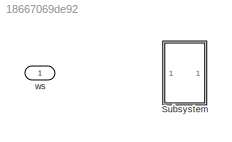
MODEL slx_18667069de92
KIND model
CONFIG AbsTol = auto
CONFIG EnableMultiTasking = off
CONFIG FixedStep = auto
CONFIG MaxStep = auto
CONFIG MinStep = auto
CONFIG RelTol = 1e-3
CONFIG SampleTimeConstraint = Unconstrained
CONFIG SolverName = VariableStepAuto
CONFIG StartTime = 0.0
CONFIG StopTime = 200
WORKSPACE source: mxarray member
WORKSPACE k1: Simulink.Parameter (value not decoded)
WORKSPACE k2: Simulink.Parameter (value not decoded)
WORKSPACE m: Simulink.Parameter (value not decoded)
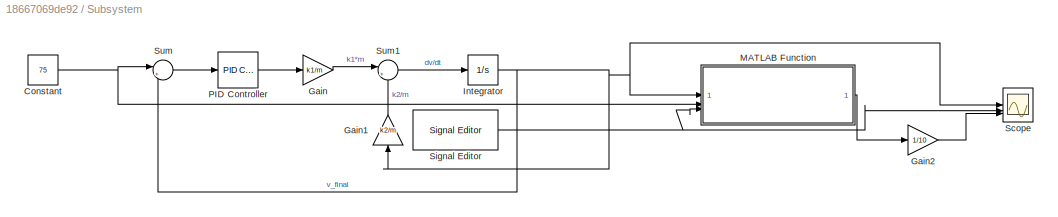
BLOCK [SubSystem] Subsystem
BLOCK [Constant] Subsystem/Constant
  Value = 75
BLOCK [Gain] Subsystem/Gain
  Gain = k1/m
BLOCK [Gain] Subsystem/Gain1
  Gain = k2/m
  NameLocation = right
BLOCK [Gain] Subsystem/Gain2
  Gain = 1/10
BLOCK [Integrator] Subsystem/Integrator
  InitialCondition = 10
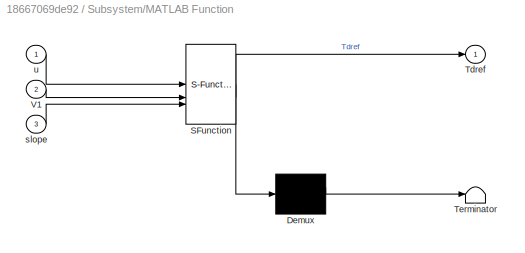
BLOCK [SubSystem] Subsystem/MATLAB Function
  ErrorFcn = Stateflow.Translate.translate
  PermitHierarchicalResolution = ExplicitOnly
  SFBlockType = MATLAB Function
  TreatAsAtomicUnit = on
BLOCK [Demux] Subsystem/MATLAB Function/ Demux 
  Outputs = 1
BLOCK [S-Function] Subsystem/MATLAB Function/ SFunction 
  EnableBusSupport = off
  FunctionName = sf_sfun
  PortCounts = [3 2]
  SFcnIsStateOwnerBlock = off
  SFunctionDeploymentMode = off
  Tag = Stateflow S-Function 2
BLOCK [Terminator] Subsystem/MATLAB Function/ Terminator 
BLOCK [Outport] Subsystem/MATLAB Function/Tdref
BLOCK [Inport] Subsystem/MATLAB Function/V1
  Port = 2
BLOCK [Inport] Subsystem/MATLAB Function/slope
  Port = 3
BLOCK [Inport] Subsystem/MATLAB Function/u
BLOCK [Reference] Subsystem/PID Controller  REF=slpidlib/PID Controller
  LibrarySourceBlock = simulink/Continuous/PID Controller
  SourceBlock = slpidlib/PID Controller
  SourceType = PID 1dof
BLOCK [Scope] Subsystem/Scope
  ActiveDisplayYMaximum = 474.53912654630375
  ActiveDisplayYMinimum = -94.3766096673516
  Floating = off
  GraphicalSettings = {"AxesScalingProperties":{"AlignXAxis":"Center","AlignYAxis":"Center","AutoScaleXAxisLimits":false,"AxesScaling":"Manual","AxesScalingNumUpdates":10,"ExpandOnly":true,"ScaleAxesLimitsAtStop":false,"XAxisDataRange":100,"YAxisDataRange":80},"DisplayProperties":{"ColorOrder":["auto","auto","auto","auto","auto","auto","auto","auto","auto","auto","auto","auto","auto","auto","auto","auto","auto","auto",...<+2258ch>
  MultipleDisplayCache = [{"MaxYLimMag":254.4048026521674,"MaxYLimReal":474.53912654630375,"MinYLimMag":0,"MinYLimReal":-94.3766096673516,"PlotAsMagnitudePhase":false,"ShowGrid":true,"ShowLegend":true,"Title":"%<SignalLabel>","YLabel":""}]
  NumInputPorts = 3
  ScopeFrameLocation = window
  ShowLegend = on
  Visible = on
  WasSavedAsWebScope = on
  WindowPosition = [1.000000,49.000000,1280.000000,729.000000,]
BLOCK [Reference] Subsystem/Signal Editor  REF=SignalEditorBlockLib/Signal Editor
  LibrarySourceBlock = simulink/Sources/Signal Editor
  SourceBlock = SignalEditorBlockLib/Signal Editor
  SourceType = SignalEditor
  UserDataPersistent = on
BLOCK [Sum] Subsystem/Sum
  Inputs = |+-
BLOCK [Sum] Subsystem/Sum1
  Inputs = |+-
BLOCK [Inport] ws
NET Subsystem/Constant:1 -> Subsystem/MATLAB Function:2, Subsystem/Sum:1
LINE Subsystem/Gain1:1 -> Subsystem/Sum1:2
LINE Subsystem/Gain2:1 -> Subsystem/Scope:3
LINE Subsystem/Gain:1 -> Subsystem/Sum1:1
NET Subsystem/Integrator:1 -> Subsystem/Gain1:1, Subsystem/MATLAB Function:1, Subsystem/Scope:1, Subsystem/Sum:2
LINE Subsystem/MATLAB Function:1 -> Subsystem/Gain2:1
LINE Subsystem/PID Controller:1 -> Subsystem/Gain:1
NET Subsystem/Signal Editor:1 -> Subsystem/MATLAB Function:3, Subsystem/Scope:2
LINE Subsystem/Sum1:1 -> Subsystem/Integrator:1
LINE Subsystem/Sum:1 -> Subsystem/PID Controller:1
note: NET lines group one-source signal fan-out (src -> all destinations, sorted); 1:1 wires keep LINE
CHART Subsystem/MATLAB Function states=1 transitions=1
  STATE_LABEL 'eML_blk_kernel()'
  STATE_LABEL 'SCRIPT:\nfunction Tdref  = velocity_to_torque(u, V1,slope)\n% u       -> current velocity (v_final from integrator)\n% data    -> desired velocity\n% data1   -> slope angle in degrees (wave amplitude)\n\n%% 1. Constants\nm      = 1000;       % vehicle mass (kg)\nReff     = 0.3;        % wheel radius (m)\nig     = 9;          % gear ratio\neta_dt = 1;          % drivetrain efficiency\nk2     = 100;        % l...<+622ch>'
CHART  states=0 transitions=0
